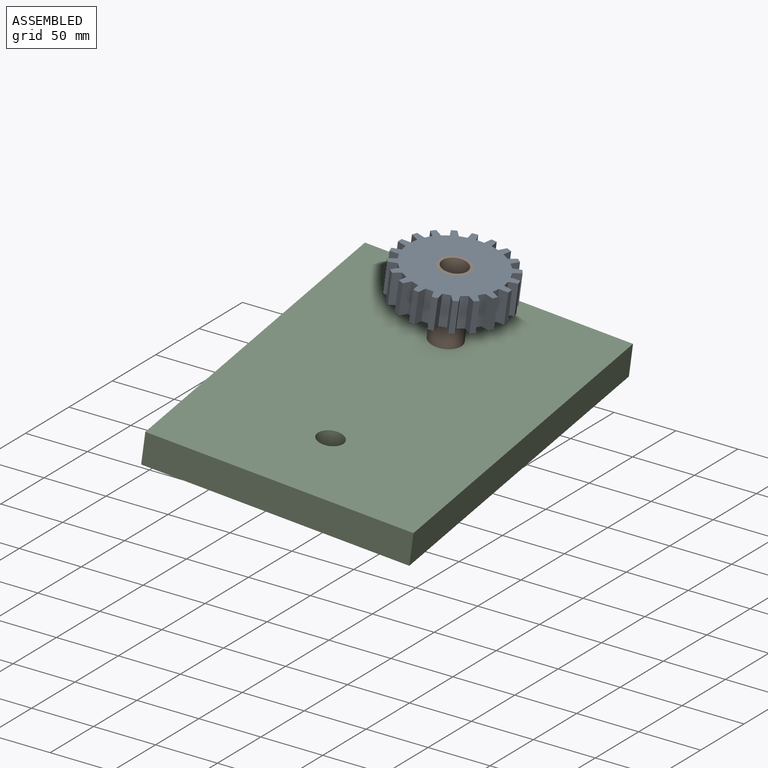
[diagram: assembled view]
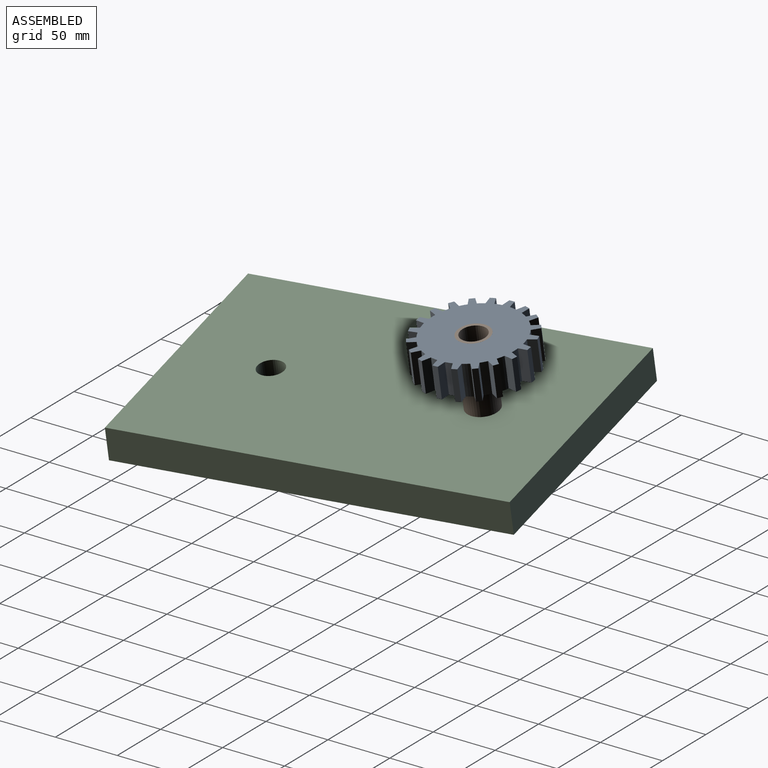
[diagram: assembled view, second angle]
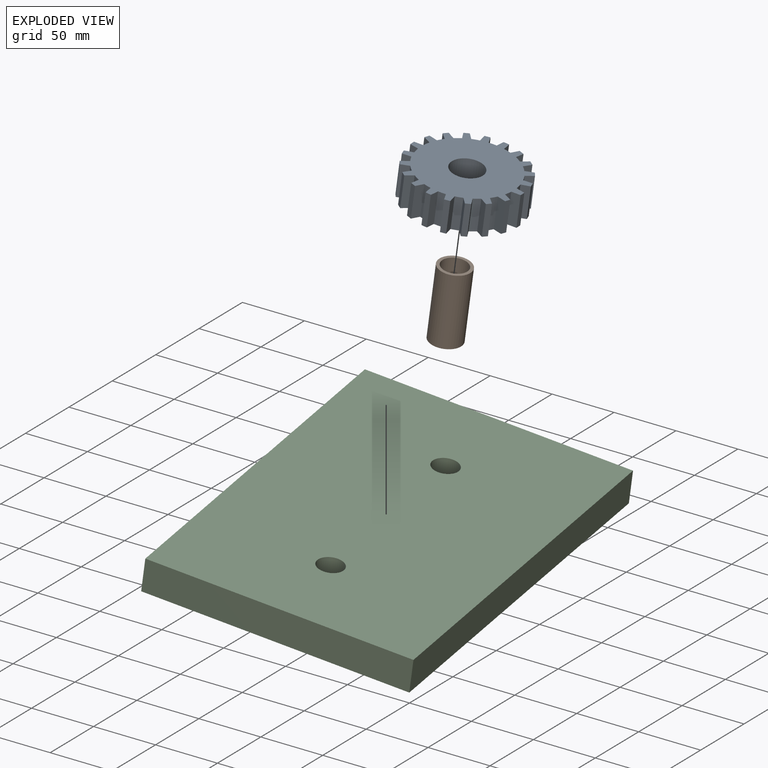
[diagram: exploded view]
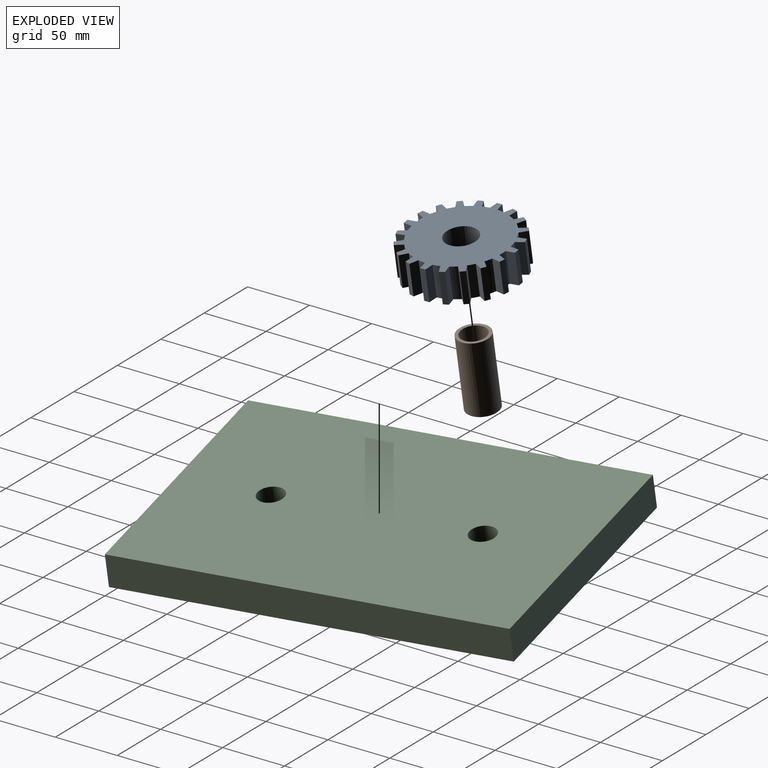
[diagram: exploded view, second angle]
ASSEMBLY  parts=3 mates=2
PART A: 83 faces, bbox 90x90x25.4 mm
  f0: plane 25.4x6.38mm, normal (0.43,-0.9,0), area 179.2mm2, adj f1,f79,f81,f82
  f1: plane 25.4x4.11mm, normal (0.95,0.31,0), area 109.7mm2, adj f0,f2,f81,f82
  f2: plane 25.4x6.93mm, normal (-0.19,0.98,0), area 179.2mm2, adj f1,f3,f81,f82
  f3: cylinder r=38.1mm len=25.4mm, axis (0,0,-1), area 149mm2, adj f2,f4,f81,f82
  f4: plane 25.4x5.14mm, normal (0.69,-0.73,0), area 179.2mm2, adj f3,f5,f81,f82
  f5: plane 25.4x3.49mm, normal (0.81,0.59,0), area 109.7mm2, adj f4,f6,f81,f82
  f6: plane 25.4x6.18mm, normal (-0.48,0.88,0), area 179.2mm2, adj f5,f7,f81,f82
  f7: cylinder r=38.1mm len=25.4mm, axis (0,0,-1), area 149mm2, adj f6,f8,f81,f82
  f8: plane 25.4x6.18mm, normal (0.88,-0.48,0), area 179.2mm2, adj f7,f9,f81,f82
  f9: plane 25.4x3.49mm, normal (0.59,0.81,0), area 109.7mm2, adj f8,f10,f81,f82
  f10: plane 25.4x5.14mm, normal (-0.73,0.69,0), area 179.2mm2, adj f9,f11,f81,f82
  f11: cylinder r=38.1mm len=25.4mm, axis (0,0,-1), area 149mm2, adj f10,f12,f81,f82
  f12: plane 25.4x6.93mm, normal (0.98,-0.19,0), area 179.2mm2, adj f11,f13,f81,f82
  f13: plane 25.4x4.11mm, normal (0.31,0.95,0), area 109.7mm2, adj f12,f14,f81,f82
  f14: plane 25.4x6.38mm, normal (-0.9,0.43,0), area 179.2mm2, adj f13,f15,f81,f82
  f15: cylinder r=38.1mm len=25.4mm, axis (0,0,-1), area 149mm2, adj f14,f16,f81,f82
  f16: plane 25.4x7mm, normal (0.99,0.13,0), area 179.2mm2, adj f15,f17,f81,f82
  f17: plane 25.4x4.32mm, normal (0,1,0), area 109.7mm2, adj f16,f18,f81,f82
  f18: plane 25.4x7mm, normal (-0.99,0.13,0), area 179.2mm2, adj f17,f19,f81,f82
  f19: cylinder r=38.1mm len=25.4mm, axis (0,0,-1), area 149mm2, adj f18,f20,f81,f82
  f20: plane 25.4x6.38mm, normal (0.9,0.43,0), area 179.2mm2, adj f19,f21,f81,f82
  f21: plane 25.4x4.11mm, normal (-0.31,0.95,0), area 109.7mm2, adj f20,f22,f81,f82
  f22: plane 25.4x6.93mm, normal (-0.98,-0.19,0), area 179.2mm2, adj f21,f23,f81,f82
  f23: cylinder r=38.1mm len=25.4mm, axis (0,0,-1), area 149mm2, adj f22,f24,f81,f82
  f24: plane 25.4x5.14mm, normal (0.73,0.69,0), area 179.2mm2, adj f23,f25,f81,f82
  f25: plane 25.4x3.49mm, normal (-0.59,0.81,0), area 109.7mm2, adj f24,f26,f81,f82
  f26: plane 25.4x6.18mm, normal (-0.88,-0.48,0), area 179.2mm2, adj f25,f27,f81,f82
  f27: cylinder r=38.1mm len=25.4mm, axis (0,0,-1), area 149mm2, adj f26,f28,f81,f82
  f28: plane 25.4x6.18mm, normal (0.48,0.88,0), area 179.2mm2, adj f27,f29,f81,f82
  f29: plane 25.4x3.49mm, normal (-0.81,0.59,0), area 109.7mm2, adj f28,f30,f81,f82
  f30: plane 25.4x5.14mm, normal (-0.69,-0.73,0), area 179.2mm2, adj f29,f31,f81,f82
  f31: cylinder r=38.1mm len=25.4mm, axis (0,0,-1), area 149mm2, adj f30,f32,f81,f82
  f32: plane 25.4x6.93mm, normal (0.19,0.98,0), area 179.2mm2, adj f31,f33,f81,f82
  f33: plane 25.4x4.11mm, normal (-0.95,0.31,0), area 109.7mm2, adj f32,f34,f81,f82
  f34: plane 25.4x6.38mm, normal (-0.43,-0.9,0), area 179.2mm2, adj f33,f35,f81,f82
  f35: cylinder r=38.1mm len=25.4mm, axis (0,0,-1), area 149mm2, adj f34,f36,f81,f82
  f36: plane 25.4x7mm, normal (-0.13,0.99,0), area 179.2mm2, adj f35,f37,f81,f82
  f37: plane 25.4x4.32mm, normal (-1,0,0), area 109.7mm2, adj f36,f38,f81,f82
  f38: plane 25.4x7mm, normal (-0.13,-0.99,0), area 179.2mm2, adj f37,f39,f81,f82
  f39: cylinder r=38.1mm len=25.4mm, axis (0,0,-1), area 149mm2, adj f38,f40,f81,f82
  f40: plane 25.4x6.38mm, normal (-0.43,0.9,0), area 179.2mm2, adj f39,f41,f81,f82
  f41: plane 25.4x4.11mm, normal (-0.95,-0.31,0), area 109.7mm2, adj f40,f42,f81,f82
  f42: plane 25.4x6.93mm, normal (0.19,-0.98,0), area 179.2mm2, adj f41,f43,f81,f82
  f43: cylinder r=38.1mm len=25.4mm, axis (0,0,-1), area 149mm2, adj f42,f44,f81,f82
  f44: plane 25.4x5.14mm, normal (-0.69,0.73,0), area 179.2mm2, adj f43,f45,f81,f82
  f45: plane 25.4x3.49mm, normal (-0.81,-0.59,0), area 109.7mm2, adj f44,f46,f81,f82
  f46: plane 25.4x6.18mm, normal (0.48,-0.88,0), area 179.2mm2, adj f45,f47,f81,f82
  f47: cylinder r=38.1mm len=25.4mm, axis (0,0,-1), area 149mm2, adj f46,f48,f81,f82
  f48: plane 25.4x6.18mm, normal (-0.88,0.48,0), area 179.2mm2, adj f47,f49,f81,f82
  f49: plane 25.4x3.49mm, normal (-0.59,-0.81,0), area 109.7mm2, adj f48,f50,f81,f82
  f50: plane 25.4x5.14mm, normal (0.73,-0.69,0), area 179.2mm2, adj f49,f51,f81,f82
  f51: cylinder r=38.1mm len=25.4mm, axis (0,0,-1), area 149mm2, adj f50,f52,f81,f82
  f52: plane 25.4x6.93mm, normal (-0.98,0.19,0), area 179.2mm2, adj f51,f53,f81,f82
  f53: plane 25.4x4.11mm, normal (-0.31,-0.95,0), area 109.7mm2, adj f52,f54,f81,f82
  f54: plane 25.4x6.38mm, normal (0.9,-0.43,0), area 179.2mm2, adj f53,f55,f81,f82
  f55: cylinder r=38.1mm len=25.4mm, axis (0,0,-1), area 149mm2, adj f54,f56,f81,f82
  f56: plane 25.4x7mm, normal (-0.99,-0.13,0), area 179.2mm2, adj f55,f57,f81,f82
  f57: plane 25.4x4.32mm, normal (0,-1,0), area 109.7mm2, adj f56,f58,f81,f82
  f58: plane 25.4x7mm, normal (0.99,-0.13,0), area 179.2mm2, adj f57,f59,f81,f82
  f59: cylinder r=38.1mm len=25.4mm, axis (0,0,-1), area 149mm2, adj f58,f60,f81,f82
  f60: plane 25.4x6.38mm, normal (-0.9,-0.43,0), area 179.2mm2, adj f59,f61,f81,f82
  f61: plane 25.4x4.11mm, normal (0.31,-0.95,0), area 109.7mm2, adj f60,f62,f81,f82
  f62: plane 25.4x6.93mm, normal (0.98,0.19,0), area 179.2mm2, adj f61,f63,f81,f82
  f63: cylinder r=38.1mm len=25.4mm, axis (0,0,-1), area 149mm2, adj f62,f64,f81,f82
  f64: plane 25.4x5.14mm, normal (-0.73,-0.69,0), area 179.2mm2, adj f63,f65,f81,f82
  f65: plane 25.4x3.49mm, normal (0.59,-0.81,0), area 109.7mm2, adj f64,f66,f81,f82
  f66: plane 25.4x6.18mm, normal (0.88,0.48,0), area 179.2mm2, adj f65,f67,f81,f82
  f67: cylinder r=38.1mm len=25.4mm, axis (0,0,-1), area 149mm2, adj f66,f68,f81,f82
  f68: plane 25.4x6.18mm, normal (-0.48,-0.88,0), area 179.2mm2, adj f67,f69,f81,f82
  f69: plane 25.4x3.49mm, normal (0.81,-0.59,0), area 109.7mm2, adj f68,f70,f81,f82
  f70: plane 25.4x5.14mm, normal (0.69,0.73,0), area 179.2mm2, adj f69,f71,f81,f82
  f71: cylinder r=38.1mm len=25.4mm, axis (0,0,-1), area 149mm2, adj f70,f72,f81,f82
  f72: plane 25.4x6.93mm, normal (-0.19,-0.98,0), area 179.2mm2, adj f71,f73,f81,f82
  f73: plane 25.4x4.11mm, normal (0.95,-0.31,0), area 109.7mm2, adj f72,f74,f81,f82
  f74: plane 25.4x6.38mm, normal (0.43,0.9,0), area 179.2mm2, adj f73,f75,f81,f82
  f75: cylinder r=38.1mm len=25.4mm, axis (0,0,-1), area 149mm2, adj f74,f76,f81,f82
  f76: plane 25.4x7mm, normal (0.13,-0.99,0), area 179.2mm2, adj f75,f77,f81,f82
  f77: plane 25.4x4.32mm, normal (1,0,0), area 109.7mm2, adj f76,f78,f81,f82
  f78: plane 25.4x7mm, normal (0.13,0.99,0), area 179.2mm2, adj f77,f79,f81,f82
  f79: cylinder r=38.1mm len=25.4mm, axis (0,0,-1), area 149mm2, adj f0,f78,f81,f82
  f80: cylinder r=12.7mm len=25.4mm, axis (0,0,-1), area 2026.8mm2, adj f81,f82
  f81: plane 89.95x89.95mm, normal (0,0,1), area 4772.5mm2, adj f0,f1,f2,f3,f4,f5,f6,f7
  f82: plane 89.95x89.95mm, normal (0,0,-1), area 4772.5mm2, adj f0,f1,f2,f3,f4,f5,f6,f7
PART B: 4 faces, bbox 25.4x25.4x57.2 mm
  f0: cylinder r=10.16mm len=57.15mm, axis (0,0,1), area 3648.3mm2, adj f2,f3
  f1: cylinder r=12.7mm len=57.15mm, axis (0,0,1), area 4560.4mm2, adj f2,f3
  f2: plane 25.4x25.4mm, normal (0,0,-1), area 182.4mm2, adj f0,f1
  f3: plane 25.4x25.4mm, normal (0,0,1), area 182.4mm2, adj f0,f1
PART C: 8 faces, bbox 304.8x203.2x25.4 mm
  f0: plane 304.8x25.4mm, normal (0,-1,0), area 7741.9mm2, adj f1,f3,f4,f5
  f1: plane 203.2x25.4mm, normal (1,0,0), area 5161.3mm2, adj f0,f2,f4,f5
  f2: plane 304.8x25.4mm, normal (0,1,0), area 7741.9mm2, adj f1,f3,f4,f5
  f3: plane 203.2x25.4mm, normal (-1,0,0), area 5161.3mm2, adj f0,f2,f4,f5
  f4: plane 304.8x203.2mm, normal (0,0,1), area 61286.8mm2, adj f0,f1,f2,f3,f6,f7
  f5: plane 304.8x203.2mm, normal (0,0,-1), area 61286.8mm2, adj f0,f1,f2,f3,f6,f7
  f6: cylinder r=10.16mm len=25.4mm, axis (0,0,-1), area 1621.5mm2, adj f4,f5
  f7: cylinder r=10.16mm len=25.4mm, axis (0,0,-1), area 1621.5mm2, adj f4,f5
PLACE A rot(axis=(0.17,0.99,0),8.8deg) t=(-219,-82.4,136.95)mm
PLACE B rot(axis=(-0.06,0.1,-0.99),83.7deg) t=(-210.19,-273.32,101.63)mm
PLACE C rot(axis=(-0.06,0.1,-0.99),83.7deg) t=(-218.31,-271.9,48.29)mm
MATE revolute B.f0 <-> A.f80  axis (0.15,-0.03,0.99) through (-215.17,-83.07,162.05)mm
MATE fastened C.f7 <-> B.f0  axis (0.15,-0.03,0.99) through (-223.77,-81.57,105.57)mm
